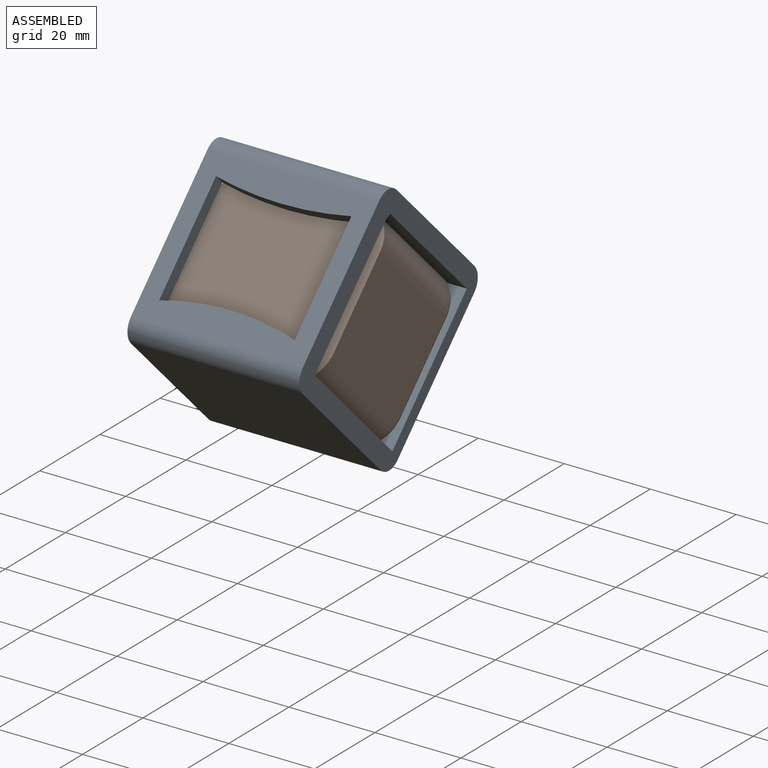
[diagram: assembled view]
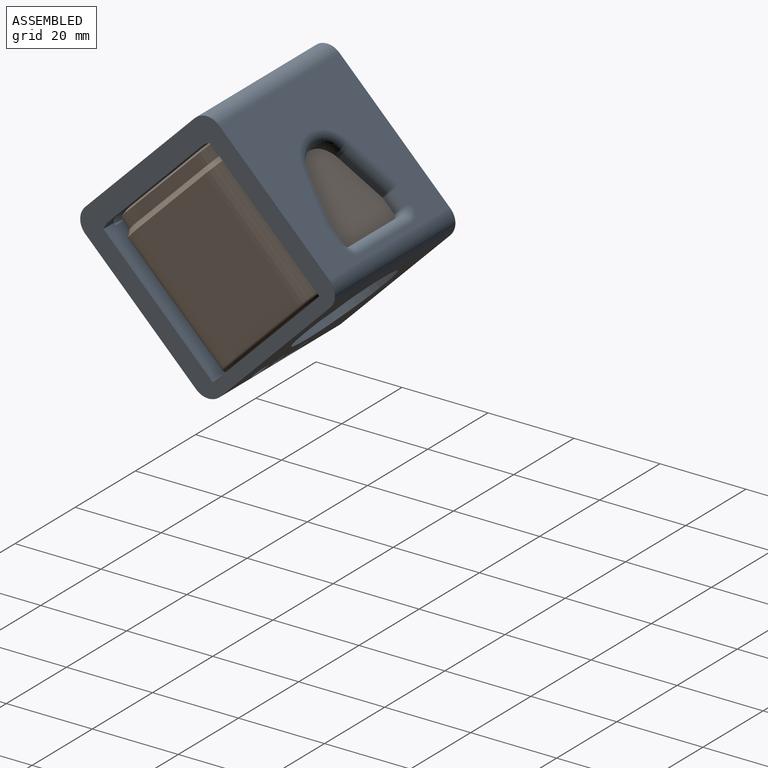
[diagram: assembled view, second angle]
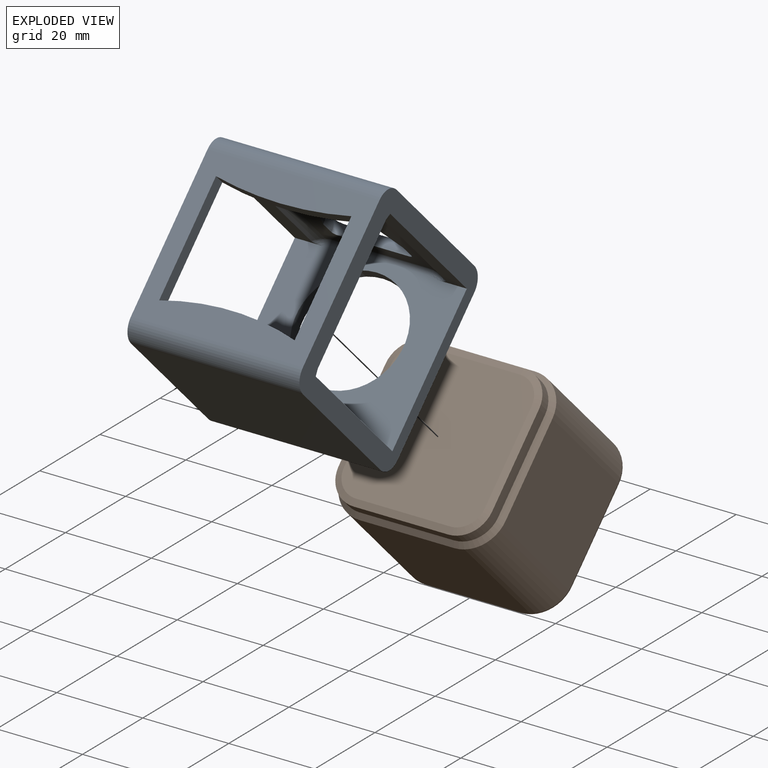
[diagram: exploded view]
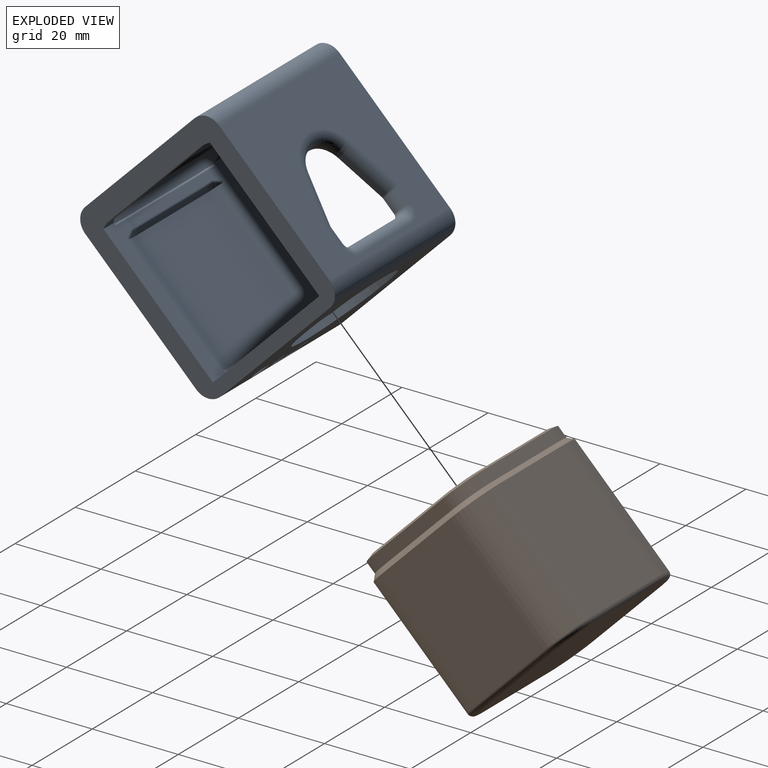
[diagram: exploded view, second angle]
ASSEMBLY  parts=2 mates=2
PART A: 119 faces, bbox 40.8x45.3x44.8 mm
  f0: plane 2.95x0.17mm, normal (0,-1,0), area 0.4mm2, adj f47,f51,f117,f118
  f1: plane 4.35x0.33mm, normal (0,-1,0), area 1mm2, adj f49,f52,f96,f97
  f2: plane 40x36mm, normal (0,1,0), area 921.8mm2, adj f14,f15,f17,f18,f82,f83,f84,f85
  f3: plane 40x35.77mm, normal (0,-1,0), area 900.2mm2, adj f4,f5,f6,f7,f14,f15,f59,f74
  f4: plane 36.84x7.68mm, normal (0,0,-1), area 163.1mm2, adj f3,f15,f21,f47,f70,f73,f74,f77
  f5: plane 36.84x7.68mm, normal (0,0,-1), area 163.2mm2, adj f3,f10,f14,f44,f71,f72,f75,f76
  f6: plane 36x6.84mm, normal (0,0,1), area 157.1mm2, adj f3,f15,f23,f49,f64,f96,f109,f110
  f7: plane 36x6.84mm, normal (0,0,1), area 157.1mm2, adj f3,f12,f14,f48,f62,f100,f103,f104
  f8: plane 40x36mm, normal (0,-1,0), area 676.3mm2, adj f14,f15,f19,f20,f54,f55,f56,f57
  f9: plane 36.5x35mm, normal (0,1,0), area 506.1mm2, adj f44,f45,f46,f47,f48,f49,f51,f52
  f10: plane 3.72x1.55mm, normal (0,0.95,-0.32), area 4.8mm2, adj f5,f11,f14,f44
  f11: plane 32x2.68mm, normal (0,1,0), area 81.9mm2, adj f10,f12,f14,f44,f45,f48
  f12: plane 3.53x1.54mm, normal (0,0.95,0.32), area 4.7mm2, adj f7,f11,f14,f48
  f13: plane 40x36.5mm, normal (0,0,1), area 992.1mm2, adj f14,f15,f18,f19,f34,f35,f36,f37
  f14: plane 44.5x44mm, normal (1,0,0), area 667.5mm2, adj f2,f3,f5,f7,f8,f10,f11,f12
  f15: plane 44.5x44mm, normal (-1,0,0), area 667.5mm2, adj f2,f3,f4,f6,f8,f13,f16,f17
  f16: plane 40x36.5mm, normal (0,0,-1), area 1460mm2, adj f14,f15,f17,f20
  f17: cylinder r=4mm len=40mm, axis (-1,0,0), area 251.3mm2, adj f2,f14,f15,f16
  f18: cylinder r=4mm len=40mm, axis (-1,0,0), area 251.3mm2, adj f2,f13,f14,f15
  f19: cylinder r=4mm len=40mm, axis (-1,0,0), area 251.3mm2, adj f8,f13,f14,f15
  f20: cylinder r=4mm len=40mm, axis (-1,0,0), area 251.3mm2, adj f8,f14,f15,f16
  f21: plane 3.6x1.55mm, normal (0,0.95,-0.32), area 4.7mm2, adj f4,f15,f22,f47
  f22: plane 32x2.56mm, normal (0,1,0), area 78.2mm2, adj f15,f21,f23,f46,f47,f49
  f23: plane 3.41x1.54mm, normal (0,0.95,0.32), area 4.5mm2, adj f6,f15,f22,f49
  f24: plane 10.79x3.66mm, normal (0.95,0.32,0), area 5.7mm2, adj f25,f33,f38,f78
  f25: cylinder r=5.94mm len=11.25mm, axis (0,0,1), area 7.4mm2, adj f24,f26,f36,f78
  f26: plane 10.79x3.66mm, normal (-0.95,0.32,0), area 5.7mm2, adj f25,f27,f34,f78
  f27: cylinder r=1mm len=0.5mm, axis (0,0,1), area 0.2mm2, adj f26,f28,f35,f78
  f28: plane 3.59x0.5mm, normal (-1,0,0), area 1.8mm2, adj f27,f29,f37,f78
  f29: cylinder r=1mm len=1mm, axis (0,0,1), area 0.8mm2, adj f28,f30,f39,f78
  f30: plane 16.67x0.5mm, normal (0,-1,0), area 8.3mm2, adj f29,f31,f41,f78
  f31: cylinder r=1mm len=1mm, axis (0,0,1), area 0.8mm2, adj f30,f32,f43,f78
  f32: plane 3.59x0.5mm, normal (1,0,0), area 1.8mm2, adj f31,f33,f42,f78
  f33: cylinder r=1mm len=0.5mm, axis (0,0,1), area 0.2mm2, adj f24,f32,f40,f78
  f34: cylinder r=2.5mm len=11.6mm, axis (-0.32,-0.95,0), area 44.8mm2, adj f13,f26,f35,f36
  f35: torus R=3.5mm, axis (0,0,1), area 2.4mm2, adj f13,f27,f34,f37
  f36: torus R=8.44mm, axis (0,0,1), area 66.9mm2, adj f13,f25,f34,f38
  f37: cylinder r=2.5mm len=3.59mm, axis (0,-1,0), area 14.1mm2, adj f13,f28,f35,f39
  f38: cylinder r=2.5mm len=11.6mm, axis (-0.32,0.95,0), area 44.8mm2, adj f13,f24,f36,f40
  f39: torus R=3.5mm, axis (0,0,1), area 11.8mm2, adj f13,f29,f37,f41
  f40: torus R=3.5mm, axis (0,0,1), area 2.4mm2, adj f13,f33,f38,f42
  f41: cylinder r=2.5mm len=16.67mm, axis (1,0,0), area 65.5mm2, adj f13,f30,f39,f43
  f42: cylinder r=2.5mm len=3.59mm, axis (0,1,0), area 14.1mm2, adj f13,f32,f40,f43
  f43: torus R=3.5mm, axis (0,0,1), area 11.8mm2, adj f13,f31,f41,f42
  f44: cylinder r=3mm len=3.2mm, axis (0,1,0), area 11.6mm2, adj f5,f9,f10,f11,f45,f50,f51,f112
  f45: plane 30.5x2mm, normal (-1,0,0), area 61mm2, adj f9,f11,f44,f48
  f46: plane 30.5x2mm, normal (1,0,0), area 61mm2, adj f9,f22,f47,f49
  f47: cylinder r=3mm len=3.2mm, axis (0,1,0), area 11.6mm2, adj f0,f4,f9,f21,f22,f46,f51,f118
  f48: cylinder r=3mm len=3.2mm, axis (0,1,0), area 11.7mm2, adj f7,f9,f11,f12,f45,f52,f53,f100
  f49: cylinder r=3mm len=3.2mm, axis (0,1,0), area 11.7mm2, adj f1,f6,f9,f22,f23,f46,f52,f96
  f50: plane 2.84x0.17mm, normal (0,-1,0), area 0.4mm2, adj f44,f51,f112,f113
  f51: plane 29.01x2.71mm, normal (0,0,-1), area 78.3mm2, adj f0,f9,f44,f47,f50,f114,f115,f116
  f52: plane 29x2.7mm, normal (0,0,1), area 78.3mm2, adj f1,f9,f48,f49,f53,f98,f99,f101
  f53: plane 4.23x0.33mm, normal (0,-1,0), area 0.9mm2, adj f48,f52,f100,f102
  f54: plane 26.7x3mm, normal (-1,0,0), area 80.1mm2, adj f8,f9,f56,f57
  f55: plane 26.7x3mm, normal (1,0,0), area 80.1mm2, adj f8,f9,f56,f57
  f56: cylinder r=80mm len=31.5mm, axis (0,-1,0), area 95.1mm2, adj f8,f9,f54,f55
  f57: cylinder r=60mm len=31.5mm, axis (0,-1,0), area 95.6mm2, adj f8,f9,f54,f55
  f58: plane 30.7x22mm, normal (0,0,1), area 675.4mm2, adj f59,f60,f68,f69
  f59: cylinder r=1.15mm len=23.32mm, axis (1,0,0), area 39.7mm2, adj f3,f58,f61,f67,f103,f111
  f60: plane 22x1mm, normal (0,0.71,0.71), area 31.2mm2, adj f58,f65,f66,f107
  f61: torus R=6.85mm, axis (0,-1,0), area 4mm2, adj f59,f69,f111
  f62: cylinder r=6.85mm len=2.16mm, axis (0,1,0), area 4.6mm2, adj f7,f63,f101,f102,f105,f106
  f63: plane 22x2.09mm, normal (0,0,1), area 46.1mm2, adj f62,f64,f99,f107
  f64: cylinder r=6.85mm len=2.16mm, axis (0,1,0), area 4.6mm2, adj f6,f63,f97,f98,f108,f109
  f65: cone r=6.85mm half-angle=45deg, axis (0,1,0), area 4.8mm2, adj f60,f69,f108,f109
  f66: cone r=6.85mm half-angle=45deg, axis (0,1,0), area 4.8mm2, adj f60,f68,f105,f106
  f67: torus R=6.85mm, axis (0,-1,0), area 4mm2, adj f59,f68,f103
  f68: cylinder r=8mm len=30.74mm, axis (0,1,0), area 148.1mm2, adj f58,f66,f67,f104,f105
  f69: cylinder r=8mm len=30.74mm, axis (0,1,0), area 148.1mm2, adj f58,f61,f65,f109,f110
  f70: cylinder r=8mm len=30.7mm, axis (0,1,0), area 152.9mm2, adj f4,f73,f74,f78
  f71: cylinder r=8mm len=30.7mm, axis (0,1,0), area 152.9mm2, adj f5,f72,f75,f78
  f72: cone r=6.85mm half-angle=45deg, axis (0,1,0), area 5.7mm2, adj f5,f71,f76,f79
  f73: cone r=6.85mm half-angle=45deg, axis (0,1,0), area 5.7mm2, adj f4,f70,f77,f79
  f74: torus R=6.85mm, axis (0,-1,0), area 6.5mm2, adj f3,f4,f70,f81
  f75: torus R=6.85mm, axis (0,-1,0), area 6.5mm2, adj f3,f5,f71,f81
  f76: cylinder r=6.85mm len=2.33mm, axis (0,1,0), area 5.1mm2, adj f5,f72,f80,f113,f114
  f77: cylinder r=6.85mm len=2.33mm, axis (0,1,0), area 5.1mm2, adj f4,f73,f80,f116,f117
  f78: plane 30.7x22mm, normal (0,0,-1), area 390.2mm2, adj f24,f25,f26,f27,f28,f29,f30,f31
  f79: plane 22x1.15mm, normal (0,0.71,-0.71), area 35.8mm2, adj f72,f73,f78,f80
  f80: plane 22x2.33mm, normal (0,0,-1), area 51.3mm2, adj f76,f77,f79,f115
  f81: cylinder r=1.15mm len=22mm, axis (-1,0,0), area 39.7mm2, adj f3,f74,f75,f78
  f82: cylinder r=2mm len=4mm, axis (0,1,0), area 37.7mm2, adj f2,f3
  f83: cylinder r=0.5mm len=3mm, axis (0,1,0), area 2.4mm2, adj f2,f3,f84,f94
  f84: plane 3x2.5mm, normal (1,0,0), area 7.5mm2, adj f2,f3,f83,f85
  f85: cylinder r=0.5mm len=3mm, axis (0,1,0), area 4.7mm2, adj f2,f3,f84,f86
  f86: plane 3x2.5mm, normal (-1,0,0), area 7.5mm2, adj f2,f3,f85,f87
  f87: cylinder r=1.5mm len=3mm, axis (0,1,0), area 7.1mm2, adj f2,f3,f86,f88
  f88: plane 5.8x3mm, normal (0,0,1), area 17.4mm2, adj f2,f3,f87,f89
  f89: cylinder r=1.5mm len=3mm, axis (0,1,0), area 7.1mm2, adj f2,f3,f88,f90
  f90: plane 3x2.5mm, normal (1,0,0), area 7.5mm2, adj f2,f3,f89,f91
  f91: cylinder r=0.5mm len=3mm, axis (0,1,0), area 4.7mm2, adj f2,f3,f90,f92
  f92: plane 3x2.5mm, normal (-1,0,0), area 7.5mm2, adj f2,f3,f91,f93
  f93: cylinder r=0.5mm len=3mm, axis (0,1,0), area 2.4mm2, adj f2,f3,f92,f94
  f94: plane 5.8x3mm, normal (0,0,-1), area 17.4mm2, adj f2,f3,f83,f93
  f95: cylinder r=12.5mm len=25mm, axis (0,1,0), area 235.6mm2, adj f2,f3
  f96: cylinder r=0.5mm len=3.47mm, axis (1,0,0), area 2.4mm2, adj f1,f6,f49,f97
  f97: torus R=7.35mm, axis (0,1,0), area 1.3mm2, adj f1,f64,f96,f98
  f98: bspline ~1.35x0.52mm, area 0.4mm2, adj f52,f64,f97,f99
  f99: cylinder r=0.5mm len=22mm, axis (1,0,0), area 16.8mm2, adj f52,f63,f98,f101
  f100: cylinder r=0.5mm len=3.35mm, axis (1,0,0), area 2.3mm2, adj f7,f48,f53,f102
  f101: bspline ~1.35x0.52mm, area 0.4mm2, adj f52,f62,f99,f102
  f102: torus R=7.35mm, axis (0,1,0), area 1.3mm2, adj f53,f62,f100,f101
  f103: bspline ~6.45x1.69mm, area 1.1mm2, adj f3,f7,f59,f67,f104
  f104: cylinder r=0.5mm len=30.91mm, axis (0,1,0), area 9.3mm2, adj f7,f68,f103,f105
  f105: bspline ~4.57x2.42mm, area 1.2mm2, adj f7,f62,f66,f68,f104,f106
  f106: torus R=7.35mm, axis (0,1,0), area 0.9mm2, adj f62,f66,f105,f107
  f107: cylinder r=0.5mm len=22mm, axis (-1,0,0), area 8.6mm2, adj f60,f63,f106,f108
  f108: torus R=7.35mm, axis (0,1,0), area 0.9mm2, adj f64,f65,f107,f109
  f109: bspline ~4.56x2.19mm, area 1.2mm2, adj f6,f64,f65,f69,f108,f110
  f110: cylinder r=0.5mm len=30.91mm, axis (0,1,0), area 9.3mm2, adj f6,f69,f109,f111
  f111: bspline ~5.41x1.69mm, area 1mm2, adj f3,f6,f59,f61,f110
  f112: cylinder r=0.5mm len=3.17mm, axis (-1,0,0), area 2.1mm2, adj f5,f44,f50,f113
  f113: torus R=7.35mm, axis (0,1,0), area 0.5mm2, adj f50,f76,f112,f114
  f114: bspline ~2.34x0.59mm, area 1mm2, adj f51,f76,f113,f115
  f115: cylinder r=0.5mm len=22mm, axis (-1,0,0), area 13.3mm2, adj f51,f80,f114,f116
  f116: bspline ~2.34x0.59mm, area 1mm2, adj f51,f77,f115,f117
  f117: torus R=7.35mm, axis (0,1,0), area 0.5mm2, adj f0,f77,f116,f118
  f118: cylinder r=0.5mm len=3.29mm, axis (-1,0,0), area 2.2mm2, adj f0,f4,f47,f117
PART B: 42 faces, bbox 39.3x36.5x39.3 mm
  f0: plane 30.9x22mm, normal (0,0,-1), area 679.8mm2, adj f1,f7,f9,f28
  f1: cylinder r=8mm len=30.9mm, axis (0,1,0), area 388.3mm2, adj f0,f2,f11,f26
  f2: plane 30.9x22mm, normal (1,0,0), area 679.8mm2, adj f1,f3,f13,f27
  f3: cylinder r=8mm len=30.9mm, axis (0,1,0), area 388.3mm2, adj f2,f4,f15,f29
  f4: plane 30.9x22mm, normal (0,0,1), area 679.8mm2, adj f3,f5,f16,f31
  f5: cylinder r=8mm len=30.9mm, axis (0,1,0), area 388.3mm2, adj f4,f6,f14,f33
  f6: plane 30.9x22mm, normal (-1,0,0), area 679.8mm2, adj f5,f7,f12,f32
  f7: cylinder r=8mm len=30.9mm, axis (0,1,0), area 388.3mm2, adj f0,f6,f10,f30
  f8: plane 35.7x35.7mm, normal (0,1,0), area 1234.2mm2, adj f26,f27,f28,f29,f30,f31,f32,f33
  f9: plane 22x1.15mm, normal (0,-0.71,-0.71), area 35.8mm2, adj f0,f10,f11,f22
  f10: cone r=6.85mm half-angle=45deg, axis (0,1,0), area 19mm2, adj f7,f9,f12,f21
  f11: cone r=6.85mm half-angle=45deg, axis (0,1,0), area 19mm2, adj f1,f9,f13,f23
  f12: plane 22x1.15mm, normal (-0.71,-0.71,0), area 35.8mm2, adj f6,f10,f14,f20
  f13: plane 22x1.15mm, normal (0.71,-0.71,0), area 35.8mm2, adj f2,f11,f15,f24
  f14: cone r=6.85mm half-angle=45deg, axis (0,1,0), area 19mm2, adj f5,f12,f16,f19
  f15: cone r=6.85mm half-angle=45deg, axis (0,1,0), area 19mm2, adj f3,f13,f16,f17
  f16: plane 22x1.15mm, normal (0,-0.71,0.71), area 35.8mm2, adj f4,f14,f15,f18
  f17: cylinder r=6.85mm len=6.85mm, axis (0,1,0), area 30.1mm2, adj f15,f18,f24,f37
  f18: plane 22x2.8mm, normal (0,0,1), area 61.6mm2, adj f16,f17,f19,f39
  f19: cylinder r=6.85mm len=6.85mm, axis (0,1,0), area 30.1mm2, adj f14,f18,f20,f41
  f20: plane 22x2.8mm, normal (-1,0,0), area 61.6mm2, adj f12,f19,f21,f40
  f21: cylinder r=6.85mm len=6.85mm, axis (0,1,0), area 30.1mm2, adj f10,f20,f22,f38
  f22: plane 22x2.8mm, normal (0,0,-1), area 61.6mm2, adj f9,f21,f23,f36
  f23: cylinder r=6.85mm len=6.85mm, axis (0,1,0), area 30.1mm2, adj f11,f22,f24,f34
  f24: plane 22x2.8mm, normal (1,0,0), area 61.6mm2, adj f13,f17,f23,f35
  f25: plane 32.7x32.7mm, normal (0,-1,0), area 1044.7mm2, adj f34,f35,f36,f37,f38,f39,f40,f41
  f26: torus R=6.85mm, axis (0,-1,0), area 21.5mm2, adj f1,f8,f27,f28
  f27: cylinder r=1.15mm len=22mm, axis (0,0,1), area 39.7mm2, adj f2,f8,f26,f29
  f28: cylinder r=1.15mm len=22mm, axis (1,0,0), area 39.7mm2, adj f0,f8,f26,f30
  f29: torus R=6.85mm, axis (0,-1,0), area 21.5mm2, adj f3,f8,f27,f31
  f30: torus R=6.85mm, axis (0,-1,0), area 21.5mm2, adj f7,f8,f28,f32
  f31: cylinder r=1.15mm len=22mm, axis (-1,0,0), area 39.7mm2, adj f4,f8,f29,f33
  f32: cylinder r=1.15mm len=22mm, axis (0,0,-1), area 39.7mm2, adj f6,f8,f30,f33
  f33: torus R=6.85mm, axis (0,-1,0), area 21.5mm2, adj f5,f8,f31,f32
  f34: cone r=5.35mm half-angle=71.6deg, axis (0,1,0), area 15.2mm2, adj f23,f25,f35,f36
  f35: plane 22x1.5mm, normal (0.32,-0.95,0), area 34.8mm2, adj f24,f25,f34,f37
  f36: plane 22x1.5mm, normal (0,-0.95,-0.32), area 34.8mm2, adj f22,f25,f34,f38
  f37: cone r=5.35mm half-angle=71.6deg, axis (0,1,0), area 15.2mm2, adj f17,f25,f35,f39
  f38: cone r=5.35mm half-angle=71.6deg, axis (0,1,0), area 15.2mm2, adj f21,f25,f36,f40
  f39: plane 22x1.5mm, normal (0,-0.95,0.32), area 34.8mm2, adj f18,f25,f37,f41
  f40: plane 22x1.5mm, normal (-0.32,-0.95,0), area 34.8mm2, adj f20,f25,f38,f41
  f41: cone r=5.35mm half-angle=71.6deg, axis (0,1,0), area 15.2mm2, adj f19,f25,f39,f40
PLACE A rot(axis=(-1,0,0),45deg) t=(22.69,-64.78,-51.79)mm
PLACE B rot(axis=(-1,0,0),45deg) t=(22.69,-57.43,-22.37)mm
MATE planar A.f3 <-> B.f8  axis (0,-0.71,0.71) through (22.56,-46.52,-34.94)mm
MATE planar B.f4 <-> A.f78  axis (0,0.71,0.71) through (22.69,-43.99,-8.94)mm
